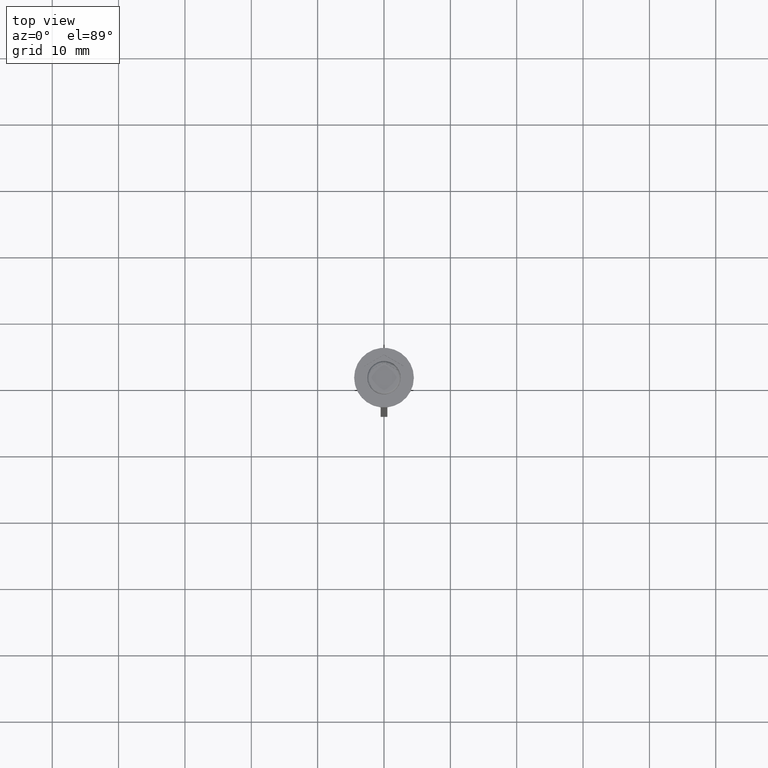
[diagram: clean part render]
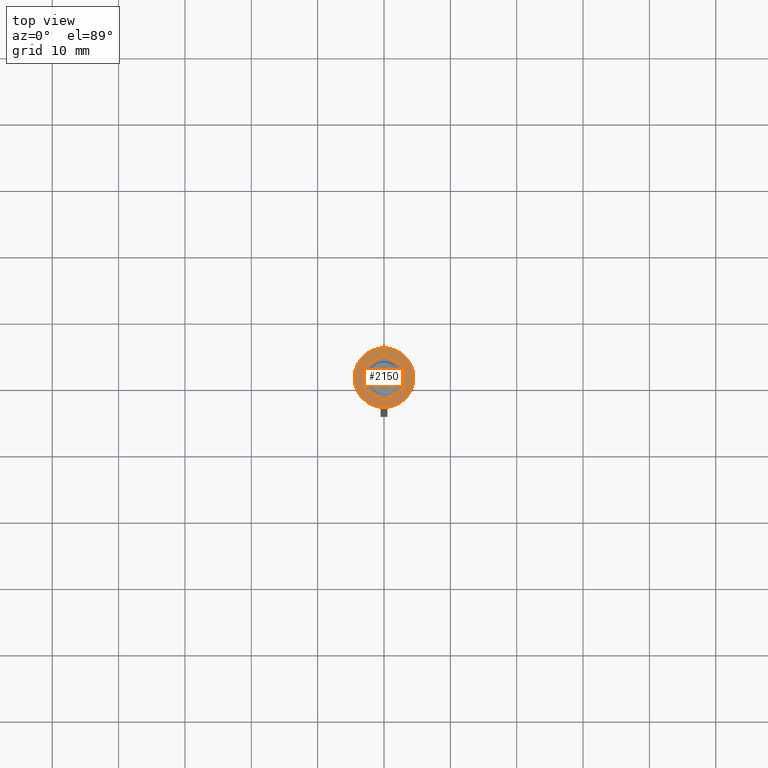
[diagram: same view with one face highlighted and labeled with its STEP entity id]
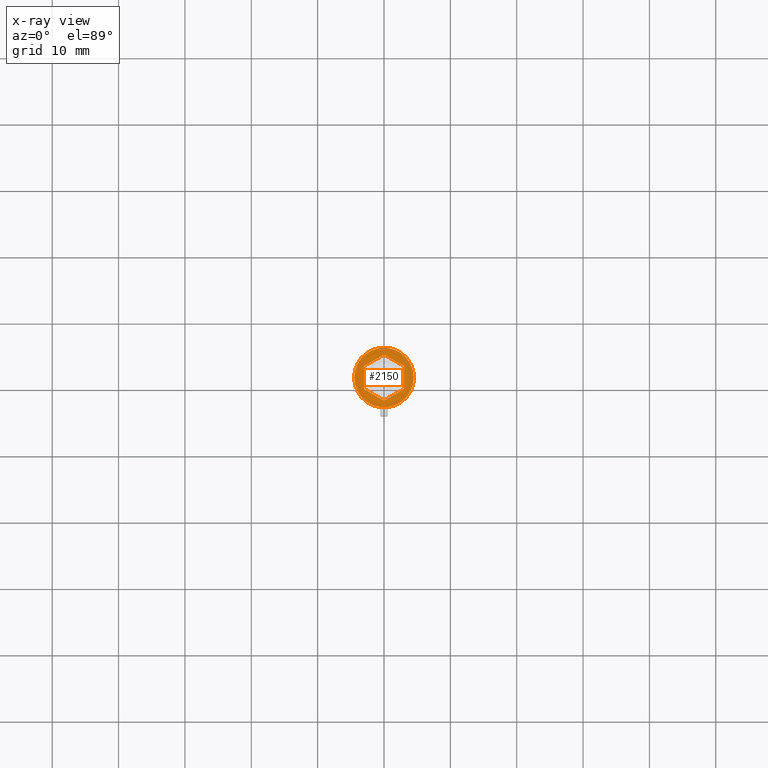
[diagram: x-ray of the same camera — body ghosted, the highlighted face saturated]
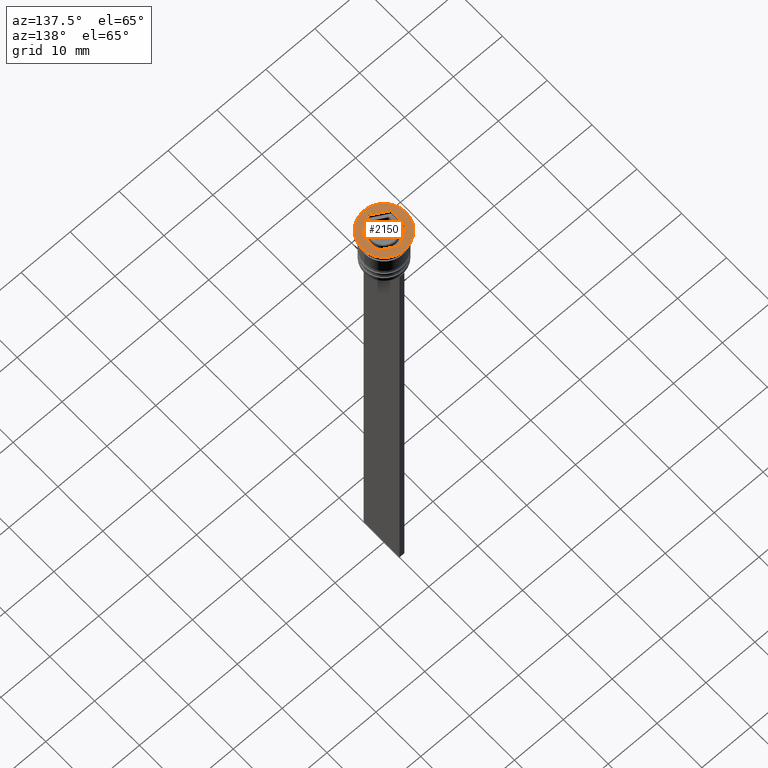
[diagram: same view with one face highlighted and labeled with its STEP entity id]
A machine part, top view. The second image highlights one B-rep face of the part: STEP entity #2150.
The next image is the same camera in x-ray: the body ghosted, the highlighted face saturated — about 0% of this face is hidden behind the body in this view.
A second angle (auxiliary view) of the same face is appended — the face is thin or edge-on in the first view.
In plain terms, the highlighted planar face has unit normal (0, -0, 1).
Its self-contained STEP definition (entity closure, byte-faithful):
#18 = AXIS2_PLACEMENT_3D ( 'NONE', #595, #1363, #799 ) ;
#80 = VERTEX_POINT ( 'NONE', #1866 ) ;
#85 = VERTEX_POINT ( 'NONE', #1471 ) ;
#193 = EDGE_CURVE ( 'NONE', #85, #1529, #743, .T. ) ;
#201 = CARTESIAN_POINT ( 'NONE',  ( -4.500000000000000000, 5.510910596163088569E-16, 0.000000000000000000 ) ) ;
#239 = ORIENTED_EDGE ( 'NONE', *, *, #815, .T. ) ;
#255 = VECTOR ( 'NONE', #1106, 1000.000000000000000 ) ;
#262 = VECTOR ( 'NONE', #2149, 1000.000000000000114 ) ;
#270 = ORIENTED_EDGE ( 'NONE', *, *, #1000, .F. ) ;
#341 = CARTESIAN_POINT ( 'NONE',  ( -2.112280747572084180E-16, -3.464101615137754830, 0.000000000000000000 ) ) ;
#345 = VECTOR ( 'NONE', #1101, 1000.000000000000227 ) ;
#421 = CARTESIAN_POINT ( 'NONE',  ( 4.500000000000000000, 0.000000000000000000, 0.000000000000000000 ) ) ;
#427 = CARTESIAN_POINT ( 'NONE',  ( -3.000000000000000000, 1.732050807568876749, 0.000000000000000000 ) ) ;
#429 = VECTOR ( 'NONE', #602, 1000.000000000000000 ) ;
#450 = EDGE_LOOP ( 'NONE', ( #1630, #270, #2490, #1956, #2215, #1289 ) ) ;
#455 = DIRECTION ( 'NONE',  ( 0.000000000000000000, -1.000000000000000000, 0.000000000000000000 ) ) ;
#513 = CARTESIAN_POINT ( 'NONE',  ( -3.000000000000000000, 1.732050807568876749, 0.000000000000000000 ) ) ;
#568 = CARTESIAN_POINT ( 'NONE',  ( -3.000000000000000000, -1.732050807568877637, 0.000000000000000000 ) ) ;
#589 = CIRCLE ( 'NONE', #1812, 4.500000000000000000 ) ;
#595 = CARTESIAN_POINT ( 'NONE',  ( 0.000000000000000000, 0.000000000000000000, 0.000000000000000000 ) ) ;
#602 = DIRECTION ( 'NONE',  ( 2.503857664561932376E-16, 1.000000000000000000, 0.000000000000000000 ) ) ;
#688 = FACE_OUTER_BOUND ( 'NONE', #1541, .T. ) ;
#743 = LINE ( 'NONE', #1887, #345 ) ;
#745 = EDGE_CURVE ( 'NONE', #1284, #798, #2222, .T. ) ;
#751 = CARTESIAN_POINT ( 'NONE',  ( 3.000000000000000000, -1.732050807568876971, 0.000000000000000000 ) ) ;
#798 = VERTEX_POINT ( 'NONE', #421 ) ;
#799 = DIRECTION ( 'NONE',  ( 1.000000000000000000, 0.000000000000000000, 0.000000000000000000 ) ) ;
#807 = LINE ( 'NONE', #1357, #262 ) ;
#815 = EDGE_CURVE ( 'NONE', #798, #1284, #589, .T. ) ;
#831 = VECTOR ( 'NONE', #455, 1000.000000000000000 ) ;
#899 = PLANE ( 'NONE',  #1073 ) ;
#943 = EDGE_CURVE ( 'NONE', #1843, #2374, #2216, .T. ) ;
#964 = CARTESIAN_POINT ( 'NONE',  ( 0.000000000000000000, 0.000000000000000000, 0.000000000000000000 ) ) ;
#1000 = EDGE_CURVE ( 'NONE', #1457, #80, #1757, .T. ) ;
#1005 = CARTESIAN_POINT ( 'NONE',  ( -3.000000000000000000, -1.732050807568877637, 0.000000000000000000 ) ) ;
#1061 = EDGE_CURVE ( 'NONE', #80, #85, #807, .T. ) ;
#1073 = AXIS2_PLACEMENT_3D ( 'NONE', #2466, #1478, #1833 ) ;
#1082 = EDGE_CURVE ( 'NONE', #1529, #1843, #1952, .T. ) ;
#1101 = DIRECTION ( 'NONE',  ( -0.8660254037844385966, -0.5000000000000000000, 0.000000000000000000 ) ) ;
#1106 = DIRECTION ( 'NONE',  ( 0.8660254037844385966, 0.5000000000000001110, 0.000000000000000000 ) ) ;
#1284 = VERTEX_POINT ( 'NONE', #201 ) ;
#1289 = ORIENTED_EDGE ( 'NONE', *, *, #193, .F. ) ;
#1357 = CARTESIAN_POINT ( 'NONE',  ( 3.000000000000000888, 1.732050807568877415, 0.000000000000000000 ) ) ;
#1363 = DIRECTION ( 'NONE',  ( -0.000000000000000000, -0.000000000000000000, 1.000000000000000000 ) ) ;
#1457 = VERTEX_POINT ( 'NONE', #751 ) ;
#1471 = CARTESIAN_POINT ( 'NONE',  ( -2.168404344971008868E-16, 3.464101615137753942, 0.000000000000000000 ) ) ;
#1478 = DIRECTION ( 'NONE',  ( 0.000000000000000000, -0.000000000000000000, 1.000000000000000000 ) ) ;
#1516 = CARTESIAN_POINT ( 'NONE',  ( -2.112280747572084180E-16, -3.464101615137754830, 0.000000000000000000 ) ) ;
#1529 = VERTEX_POINT ( 'NONE', #513 ) ;
#1541 = EDGE_LOOP ( 'NONE', ( #239, #2533 ) ) ;
#1545 = DIRECTION ( 'NONE',  ( 1.000000000000000000, 0.000000000000000000, 0.000000000000000000 ) ) ;
#1630 = ORIENTED_EDGE ( 'NONE', *, *, #1061, .F. ) ;
#1746 = EDGE_CURVE ( 'NONE', #2374, #1457, #2082, .T. ) ;
#1751 = DIRECTION ( 'NONE',  ( -0.000000000000000000, -0.000000000000000000, 1.000000000000000000 ) ) ;
#1757 = LINE ( 'NONE', #2378, #429 ) ;
#1812 = AXIS2_PLACEMENT_3D ( 'NONE', #964, #1751, #1545 ) ;
#1833 = DIRECTION ( 'NONE',  ( 1.000000000000000000, 0.000000000000000000, 0.000000000000000000 ) ) ;
#1843 = VERTEX_POINT ( 'NONE', #568 ) ;
#1866 = CARTESIAN_POINT ( 'NONE',  ( 3.000000000000000888, 1.732050807568877415, 0.000000000000000000 ) ) ;
#1870 = FACE_BOUND ( 'NONE', #450, .T. ) ;
#1887 = CARTESIAN_POINT ( 'NONE',  ( 0.000000000000000000, 3.464101615137754386, 0.000000000000000000 ) ) ;
#1952 = LINE ( 'NONE', #427, #831 ) ;
#1956 = ORIENTED_EDGE ( 'NONE', *, *, #943, .F. ) ;
#1987 = DIRECTION ( 'NONE',  ( 0.8660254037844385966, -0.4999999999999998890, 0.000000000000000000 ) ) ;
#2082 = LINE ( 'NONE', #341, #255 ) ;
#2138 = VECTOR ( 'NONE', #1987, 1000.000000000000227 ) ;
#2149 = DIRECTION ( 'NONE',  ( -0.8660254037844387076, 0.4999999999999997780, 0.000000000000000000 ) ) ;
#2150 = ADVANCED_FACE ( 'NONE', ( #1870, #688 ), #899, .T. ) ;
#2215 = ORIENTED_EDGE ( 'NONE', *, *, #1082, .F. ) ;
#2216 = LINE ( 'NONE', #1005, #2138 ) ;
#2222 = CIRCLE ( 'NONE', #18, 4.500000000000000000 ) ;
#2374 = VERTEX_POINT ( 'NONE', #1516 ) ;
#2378 = CARTESIAN_POINT ( 'NONE',  ( 3.000000000000000000, -1.732050807568876971, 0.000000000000000000 ) ) ;
#2466 = CARTESIAN_POINT ( 'NONE',  ( 0.000000000000000000, 0.000000000000000000, 0.000000000000000000 ) ) ;
#2490 = ORIENTED_EDGE ( 'NONE', *, *, #1746, .F. ) ;
#2533 = ORIENTED_EDGE ( 'NONE', *, *, #745, .T. ) ;